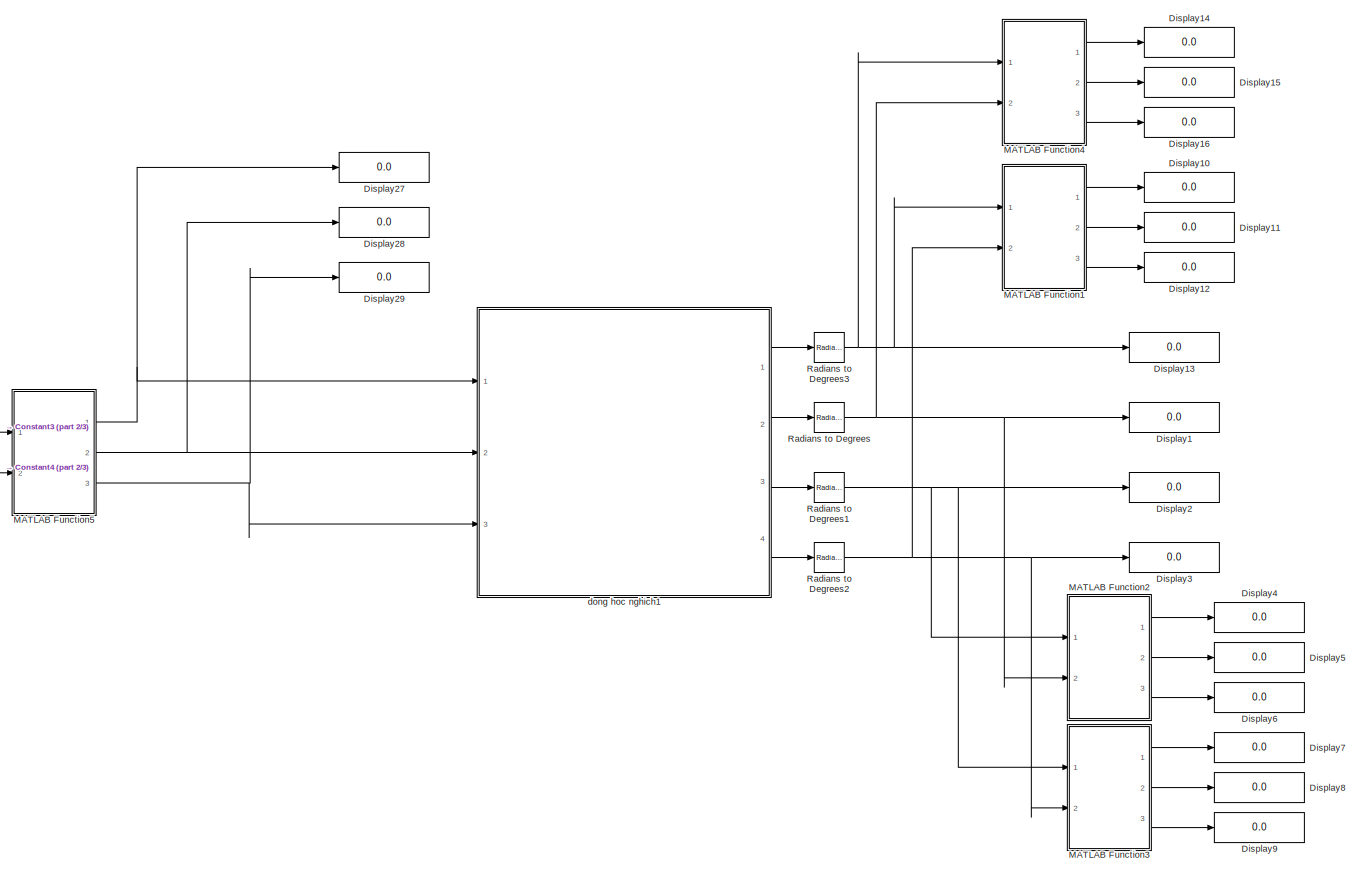
[diagram: root canvas - part 1/3, full width, middle band]
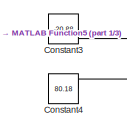
[diagram: root canvas - part 2/3, middle left region]
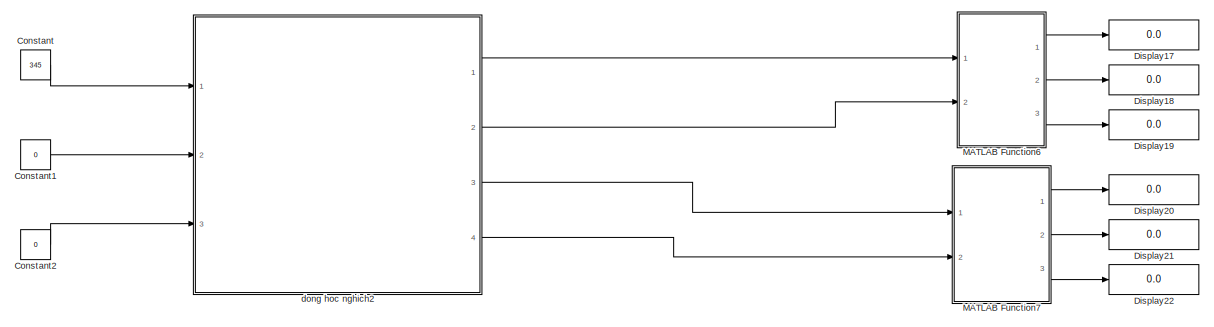
[diagram: root canvas - part 3/3, full width, bottom band]
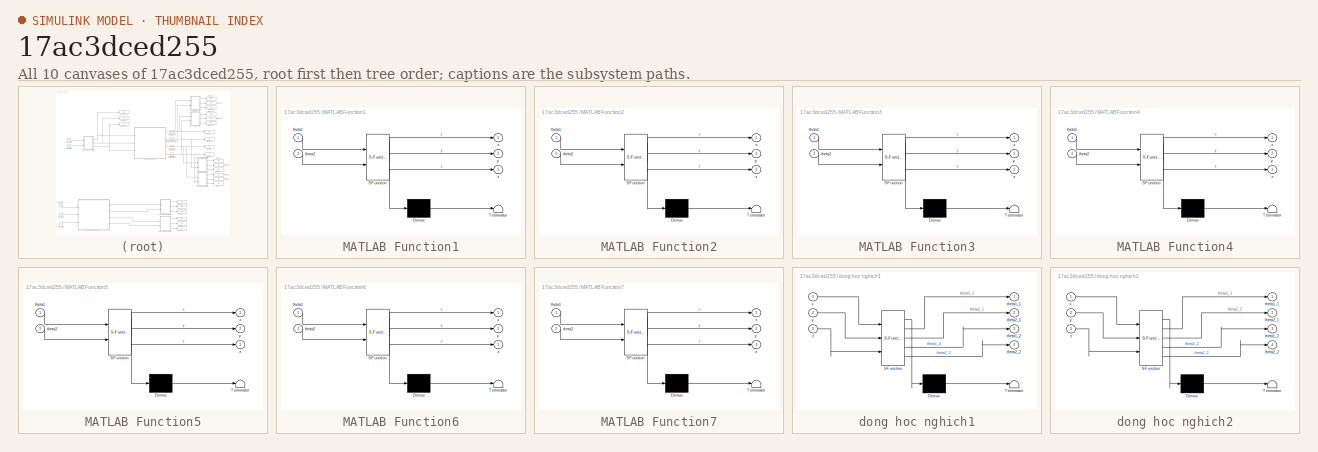
[diagram: thumbnail index - all 10 canvases of the model, root first then tree order]
MODEL slx_17ac3dced255
KIND model
CONFIG AbsTol = auto
CONFIG EnableMultiTasking = off
CONFIG FixedStep = auto
CONFIG MaxStep = auto
CONFIG MinStep = auto
CONFIG RelTol = 1e-3
CONFIG SampleTimeConstraint = Unconstrained
CONFIG SolverName = VariableStepAuto
CONFIG StartTime = 0.0
CONFIG StopTime = 10.0
BLOCK [Constant] Constant
  Value = 345
BLOCK [Constant] Constant1
  Value = 0
BLOCK [Constant] Constant2
  Value = 0
BLOCK [Constant] Constant3
  Value = -20.88
BLOCK [Constant] Constant4
  Value = 80.18
BLOCK [Display] Display1
  Decimation = 1
  Ports = [1]
BLOCK [Display] Display10
  Decimation = 1
  Ports = [1]
BLOCK [Display] Display11
  Decimation = 1
  Ports = [1]
BLOCK [Display] Display12
  Decimation = 1
  Ports = [1]
BLOCK [Display] Display13
  Decimation = 1
  Ports = [1]
BLOCK [Display] Display14
  Decimation = 1
  Ports = [1]
BLOCK [Display] Display15
  Decimation = 1
  Ports = [1]
BLOCK [Display] Display16
  Decimation = 1
  Ports = [1]
BLOCK [Display] Display17
  Decimation = 1
  Ports = [1]
BLOCK [Display] Display18
  Decimation = 1
  Ports = [1]
BLOCK [Display] Display19
  Decimation = 1
  Ports = [1]
BLOCK [Display] Display2
  Decimation = 1
  Ports = [1]
BLOCK [Display] Display20
  Decimation = 1
  Ports = [1]
BLOCK [Display] Display21
  Decimation = 1
  Ports = [1]
BLOCK [Display] Display22
  Decimation = 1
  Ports = [1]
BLOCK [Display] Display27
  Decimation = 1
  Ports = [1]
BLOCK [Display] Display28
  Decimation = 1
  Ports = [1]
BLOCK [Display] Display29
  Decimation = 1
  Ports = [1]
BLOCK [Display] Display3
  Decimation = 1
  Ports = [1]
BLOCK [Display] Display4
  Decimation = 1
  Ports = [1]
BLOCK [Display] Display5
  Decimation = 1
  Ports = [1]
BLOCK [Display] Display6
  Decimation = 1
  Ports = [1]
BLOCK [Display] Display7
  Decimation = 1
  Ports = [1]
BLOCK [Display] Display8
  Decimation = 1
  Ports = [1]
BLOCK [Display] Display9
  Decimation = 1
  Ports = [1]
BLOCK [SubSystem] MATLAB Function1
  ErrorFcn = Stateflow.Translate.translate
  PermitHierarchicalResolution = ExplicitOnly
  Ports = [2, 3]
  RequestExecContextInheritance = off
  SFBlockType = MATLAB Function
  TreatAsAtomicUnit = on
BLOCK [Demux] MATLAB Function1/ Demux 
  Outputs = 1
  Ports = [1, 1]
BLOCK [S-Function] MATLAB Function1/ SFunction 
  EnableBusSupport = on
  FunctionName = sf_sfun
  PortCounts = [2 4]
  Ports = [2, 4]
  SFcnIsStateOwnerBlock = off
  SFunctionDeploymentMode = off
  Tag = Stateflow S-Function 1
BLOCK [Terminator] MATLAB Function1/ Terminator 
BLOCK [Inport] MATLAB Function1/theta1
BLOCK [Inport] MATLAB Function1/theta2
  Port = 2
BLOCK [Outport] MATLAB Function1/x
BLOCK [Outport] MATLAB Function1/y
  Port = 2
BLOCK [Outport] MATLAB Function1/z
  Port = 3
BLOCK [SubSystem] MATLAB Function2
  ErrorFcn = Stateflow.Translate.translate
  PermitHierarchicalResolution = ExplicitOnly
  Ports = [2, 3]
  RequestExecContextInheritance = off
  SFBlockType = MATLAB Function
  TreatAsAtomicUnit = on
BLOCK [Demux] MATLAB Function2/ Demux 
  Outputs = 1
  Ports = [1, 1]
BLOCK [S-Function] MATLAB Function2/ SFunction 
  EnableBusSupport = on
  FunctionName = sf_sfun
  PortCounts = [2 4]
  Ports = [2, 4]
  SFcnIsStateOwnerBlock = off
  SFunctionDeploymentMode = off
  Tag = Stateflow S-Function 2
BLOCK [Terminator] MATLAB Function2/ Terminator 
BLOCK [Inport] MATLAB Function2/theta1
BLOCK [Inport] MATLAB Function2/theta2
  Port = 2
BLOCK [Outport] MATLAB Function2/x
BLOCK [Outport] MATLAB Function2/y
  Port = 2
BLOCK [Outport] MATLAB Function2/z
  Port = 3
BLOCK [SubSystem] MATLAB Function3
  ErrorFcn = Stateflow.Translate.translate
  PermitHierarchicalResolution = ExplicitOnly
  Ports = [2, 3]
  RequestExecContextInheritance = off
  SFBlockType = MATLAB Function
  TreatAsAtomicUnit = on
BLOCK [Demux] MATLAB Function3/ Demux 
  Outputs = 1
  Ports = [1, 1]
BLOCK [S-Function] MATLAB Function3/ SFunction 
  EnableBusSupport = on
  FunctionName = sf_sfun
  PortCounts = [2 4]
  Ports = [2, 4]
  SFcnIsStateOwnerBlock = off
  SFunctionDeploymentMode = off
  Tag = Stateflow S-Function 3
BLOCK [Terminator] MATLAB Function3/ Terminator 
BLOCK [Inport] MATLAB Function3/theta1
BLOCK [Inport] MATLAB Function3/theta2
  Port = 2
BLOCK [Outport] MATLAB Function3/x
BLOCK [Outport] MATLAB Function3/y
  Port = 2
BLOCK [Outport] MATLAB Function3/z
  Port = 3
BLOCK [SubSystem] MATLAB Function4
  ErrorFcn = Stateflow.Translate.translate
  PermitHierarchicalResolution = ExplicitOnly
  Ports = [2, 3]
  RequestExecContextInheritance = off
  SFBlockType = MATLAB Function
  TreatAsAtomicUnit = on
BLOCK [Demux] MATLAB Function4/ Demux 
  Outputs = 1
  Ports = [1, 1]
BLOCK [S-Function] MATLAB Function4/ SFunction 
  EnableBusSupport = on
  FunctionName = sf_sfun
  PortCounts = [2 4]
  Ports = [2, 4]
  SFcnIsStateOwnerBlock = off
  SFunctionDeploymentMode = off
  Tag = Stateflow S-Function 4
BLOCK [Terminator] MATLAB Function4/ Terminator 
BLOCK [Inport] MATLAB Function4/theta1
BLOCK [Inport] MATLAB Function4/theta2
  Port = 2
BLOCK [Outport] MATLAB Function4/x
BLOCK [Outport] MATLAB Function4/y
  Port = 2
BLOCK [Outport] MATLAB Function4/z
  Port = 3
BLOCK [SubSystem] MATLAB Function5
  ErrorFcn = Stateflow.Translate.translate
  PermitHierarchicalResolution = ExplicitOnly
  Ports = [2, 3]
  RequestExecContextInheritance = off
  SFBlockType = MATLAB Function
  TreatAsAtomicUnit = on
BLOCK [Demux] MATLAB Function5/ Demux 
  Outputs = 1
  Ports = [1, 1]
BLOCK [S-Function] MATLAB Function5/ SFunction 
  EnableBusSupport = on
  FunctionName = sf_sfun
  PortCounts = [2 4]
  Ports = [2, 4]
  SFcnIsStateOwnerBlock = off
  SFunctionDeploymentMode = off
  Tag = Stateflow S-Function 7
BLOCK [Terminator] MATLAB Function5/ Terminator 
BLOCK [Inport] MATLAB Function5/theta1
BLOCK [Inport] MATLAB Function5/theta2
  Port = 2
BLOCK [Outport] MATLAB Function5/x
BLOCK [Outport] MATLAB Function5/y
  Port = 2
BLOCK [Outport] MATLAB Function5/z
  Port = 3
BLOCK [SubSystem] MATLAB Function6
  ErrorFcn = Stateflow.Translate.translate
  PermitHierarchicalResolution = ExplicitOnly
  Ports = [2, 3]
  RequestExecContextInheritance = off
  SFBlockType = MATLAB Function
  TreatAsAtomicUnit = on
BLOCK [Demux] MATLAB Function6/ Demux 
  Outputs = 1
  Ports = [1, 1]
BLOCK [S-Function] MATLAB Function6/ SFunction 
  EnableBusSupport = on
  FunctionName = sf_sfun
  PortCounts = [2 4]
  Ports = [2, 4]
  SFcnIsStateOwnerBlock = off
  SFunctionDeploymentMode = off
  Tag = Stateflow S-Function 8
BLOCK [Terminator] MATLAB Function6/ Terminator 
BLOCK [Inport] MATLAB Function6/theta1
BLOCK [Inport] MATLAB Function6/theta2
  Port = 2
BLOCK [Outport] MATLAB Function6/x
BLOCK [Outport] MATLAB Function6/y
  Port = 2
BLOCK [Outport] MATLAB Function6/z
  Port = 3
BLOCK [SubSystem] MATLAB Function7
  ErrorFcn = Stateflow.Translate.translate
  PermitHierarchicalResolution = ExplicitOnly
  Ports = [2, 3]
  RequestExecContextInheritance = off
  SFBlockType = MATLAB Function
  TreatAsAtomicUnit = on
BLOCK [Demux] MATLAB Function7/ Demux 
  Outputs = 1
  Ports = [1, 1]
BLOCK [S-Function] MATLAB Function7/ SFunction 
  EnableBusSupport = on
  FunctionName = sf_sfun
  PortCounts = [2 4]
  Ports = [2, 4]
  SFcnIsStateOwnerBlock = off
  SFunctionDeploymentMode = off
  Tag = Stateflow S-Function 9
BLOCK [Terminator] MATLAB Function7/ Terminator 
BLOCK [Inport] MATLAB Function7/theta1
BLOCK [Inport] MATLAB Function7/theta2
  Port = 2
BLOCK [Outport] MATLAB Function7/x
BLOCK [Outport] MATLAB Function7/y
  Port = 2
BLOCK [Outport] MATLAB Function7/z
  Port = 3
BLOCK [Reference] Radians to Degrees  REF=simulink_extras/Transformations/Radians
to Degrees
  Ports = [1, 1]
  SourceBlock = simulink_extras/Transformations/Radians\nto Degrees
  SourceProductBaseCode = SL
  SourceType = RadiansToDegrees
BLOCK [Reference] Radians to Degrees1  REF=simulink_extras/Transformations/Radians
to Degrees
  Ports = [1, 1]
  SourceBlock = simulink_extras/Transformations/Radians\nto Degrees
  SourceProductBaseCode = SL
  SourceType = RadiansToDegrees
BLOCK [Reference] Radians to Degrees2  REF=simulink_extras/Transformations/Radians
to Degrees
  Ports = [1, 1]
  SourceBlock = simulink_extras/Transformations/Radians\nto Degrees
  SourceProductBaseCode = SL
  SourceType = RadiansToDegrees
BLOCK [Reference] Radians to Degrees3  REF=simulink_extras/Transformations/Radians
to Degrees
  Ports = [1, 1]
  SourceBlock = simulink_extras/Transformations/Radians\nto Degrees
  SourceProductBaseCode = SL
  SourceType = RadiansToDegrees
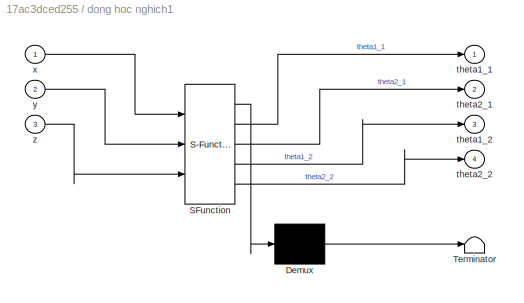
BLOCK [SubSystem] dong hoc nghich1
  ErrorFcn = Stateflow.Translate.translate
  PermitHierarchicalResolution = ExplicitOnly
  Ports = [3, 4]
  RequestExecContextInheritance = off
  SFBlockType = MATLAB Function
  TreatAsAtomicUnit = on
BLOCK [Demux] dong hoc nghich1/ Demux 
  Outputs = 1
  Ports = [1, 1]
BLOCK [S-Function] dong hoc nghich1/ SFunction 
  EnableBusSupport = on
  FunctionName = sf_sfun
  PortCounts = [3 5]
  Ports = [3, 5]
  SFcnIsStateOwnerBlock = off
  SFunctionDeploymentMode = off
  Tag = Stateflow S-Function 6
BLOCK [Terminator] dong hoc nghich1/ Terminator 
BLOCK [Outport] dong hoc nghich1/theta1_1
BLOCK [Outport] dong hoc nghich1/theta1_2
  Port = 3
BLOCK [Outport] dong hoc nghich1/theta2_1
  Port = 2
BLOCK [Outport] dong hoc nghich1/theta2_2
  Port = 4
BLOCK [Inport] dong hoc nghich1/x
BLOCK [Inport] dong hoc nghich1/y
  Port = 2
BLOCK [Inport] dong hoc nghich1/z
  Port = 3
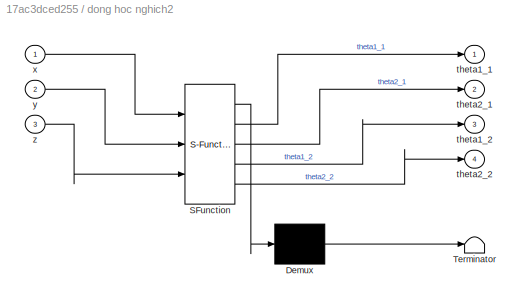
BLOCK [SubSystem] dong hoc nghich2
  ErrorFcn = Stateflow.Translate.translate
  PermitHierarchicalResolution = ExplicitOnly
  Ports = [3, 4]
  RequestExecContextInheritance = off
  SFBlockType = MATLAB Function
  TreatAsAtomicUnit = on
BLOCK [Demux] dong hoc nghich2/ Demux 
  Outputs = 1
  Ports = [1, 1]
BLOCK [S-Function] dong hoc nghich2/ SFunction 
  EnableBusSupport = on
  FunctionName = sf_sfun
  PortCounts = [3 5]
  Ports = [3, 5]
  SFcnIsStateOwnerBlock = off
  SFunctionDeploymentMode = off
  Tag = Stateflow S-Function 5
BLOCK [Terminator] dong hoc nghich2/ Terminator 
BLOCK [Outport] dong hoc nghich2/theta1_1
BLOCK [Outport] dong hoc nghich2/theta1_2
  Port = 3
BLOCK [Outport] dong hoc nghich2/theta2_1
  Port = 2
BLOCK [Outport] dong hoc nghich2/theta2_2
  Port = 4
BLOCK [Inport] dong hoc nghich2/x
BLOCK [Inport] dong hoc nghich2/y
  Port = 2
BLOCK [Inport] dong hoc nghich2/z
  Port = 3
LINE Constant1:1 -> dong hoc nghich2:2
LINE Constant2:1 -> dong hoc nghich2:3
LINE Constant3:1 -> MATLAB Function5:1
LINE Constant4:1 -> MATLAB Function5:2
LINE Constant:1 -> dong hoc nghich2:1
LINE MATLAB Function1:1 -> Display10:1
LINE MATLAB Function1:2 -> Display11:1
LINE MATLAB Function1:3 -> Display12:1
LINE MATLAB Function2:1 -> Display4:1
LINE MATLAB Function2:2 -> Display5:1
LINE MATLAB Function2:3 -> Display6:1
LINE MATLAB Function3:1 -> Display7:1
LINE MATLAB Function3:2 -> Display8:1
LINE MATLAB Function3:3 -> Display9:1
LINE MATLAB Function4:1 -> Display14:1
LINE MATLAB Function4:2 -> Display15:1
LINE MATLAB Function4:3 -> Display16:1
NET MATLAB Function5:1 -> Display27:1, dong hoc nghich1:1
NET MATLAB Function5:2 -> Display28:1, dong hoc nghich1:2
NET MATLAB Function5:3 -> Display29:1, dong hoc nghich1:3
LINE MATLAB Function6:1 -> Display17:1
LINE MATLAB Function6:2 -> Display18:1
LINE MATLAB Function6:3 -> Display19:1
LINE MATLAB Function7:1 -> Display20:1
LINE MATLAB Function7:2 -> Display21:1
LINE MATLAB Function7:3 -> Display22:1
NET Radians to Degrees1:1 -> Display2:1, MATLAB Function2:1, MATLAB Function3:1
NET Radians to Degrees2:1 -> Display3:1, MATLAB Function1:2, MATLAB Function3:2
NET Radians to Degrees3:1 -> Display13:1, MATLAB Function1:1, MATLAB Function4:1
NET Radians to Degrees:1 -> Display1:1, MATLAB Function2:2, MATLAB Function4:2
LINE dong hoc nghich1:1 -> Radians to Degrees3:1
LINE dong hoc nghich1:2 -> Radians to Degrees:1
LINE dong hoc nghich1:3 -> Radians to Degrees1:1
LINE dong hoc nghich1:4 -> Radians to Degrees2:1
LINE dong hoc nghich2:1 -> MATLAB Function6:1
LINE dong hoc nghich2:2 -> MATLAB Function6:2
LINE dong hoc nghich2:3 -> MATLAB Function7:1
LINE dong hoc nghich2:4 -> MATLAB Function7:2
note: NET lines group one-source signal fan-out (src -> all destinations, sorted); 1:1 wires keep LINE
CHART MATLAB Function6 states=1 transitions=1
  STATE_LABEL 'eML_blk_kernel()'
  STATE_LABEL 'SCRIPT:\nfunction [x,y,z] = forward(theta1,theta2)\n%% Khai bao bien\nl1=1;\nl2=1;\nl3=1;\nd=1;\nx=l1 + l2*cosd(theta1) + l3* ((cosd(theta1)*cosd(theta2))-sind(theta1)*sind(theta2));\n%y= cosd(q1)*l3*sind(q2) + sind(q1)*(l2+l3*cosd(q2));\ny=l2*sind(theta1) + l3*sind(theta1+theta2);\nz=d;\n%%diem dau cuoi\n    \n'  <repeated x6 — deduplicated; at blocks: MATLAB Function6, MATLAB Function7, MATLAB Function1, MATLAB Function2, MATLAB Function3, MATLAB Function4>
CHART MATLAB Function7 states=1 transitions=1
  STATE_LABEL 'eML_blk_kernel()'
CHART MATLAB Function1 states=1 transitions=1
  STATE_LABEL 'eML_blk_kernel()'
CHART MATLAB Function2 states=1 transitions=1
  STATE_LABEL 'eML_blk_kernel()'
CHART MATLAB Function3 states=1 transitions=1
  STATE_LABEL 'eML_blk_kernel()'
CHART MATLAB Function4 states=1 transitions=1
  STATE_LABEL 'eML_blk_kernel()'
CHART dong hoc nghich2 states=1 transitions=1
  STATE_LABEL 'eML_blk_kernel()'
  STATE_LABEL 'SCRIPT:\n%%function [theta1, theta2] = Inverse(x,y,z)\n    %%L1=1; \n   %% L2=1; \n    %%L3=1;\n        %% theta2:\n    %%c2=((x-L1)^2+y^2-L3^2-L1^2)/(2*L2*L3);\n    % Bo nghiem 1\n    %%for i=1:2\n   %%     if i==1\n     %%     s2=sqrt(1-c2^2);\n    %%    else\n   %%       s2=-sqrt(1-c2^2);\n   %% end\n    %%theta2=atan2(s2,c2);\n   %% c1=((x-L1)*(L3*cos(theta2)+L2)+y*L3*sin(theta2))/((L3*cos(theta2)+L2)*(L3*co...<+1552ch>'
CHART dong hoc nghich1 states=1 transitions=1
  STATE_LABEL 'eML_blk_kernel()'
  STATE_LABEL 'SCRIPT:\n%%function [theta1, theta2] = Inverse(x,y,z)\n    %%L1=1; \n   %% L2=1; \n    %%L3=1;\n        %% theta2:\n    %%c2=((x-L1)^2+y^2-L3^2-L1^2)/(2*L2*L3);\n    % Bo nghiem 1\n    %%for i=1:2\n   %%     if i==1\n     %%     s2=sqrt(1-c2^2);\n    %%    else\n   %%       s2=-sqrt(1-c2^2);\n   %% end\n    %%theta2=atan2(s2,c2);\n   %% c1=((x-L1)*(L3*cos(theta2)+L2)+y*L3*sin(theta2))/((L3*cos(theta2)+L2)*(L3*co...<+1551ch>'
CHART MATLAB Function5 states=1 transitions=1
  STATE_LABEL 'eML_blk_kernel()'
  STATE_LABEL 'SCRIPT:\nfunction [x,y,z] = forward(theta1,theta2)\n%% Khai bao bien\nl1=65;\nl2=170;\nl3=110;\nd=10;\n%x=l1 + l2*cosd(theta1) + l3* ((cosd(theta1)*cosd(theta2))-sind(theta1)*sind(theta2));\nx=l1 + l2*cosd(theta1) + l3* (cosd(theta1+theta2));\n%y= cosd(q1)*l3*sind(q2) + sind(q1)*(l2+l3*cosd(q2));\ny=l2*sind(theta1) + l3*sind(theta1+theta2);\nz=d;\n%%diem dau cuoi\n    \n'
CHART  states=0 transitions=0
CHART  states=0 transitions=0
CHART  states=0 transitions=0
CHART  states=0 transitions=0
CHART  states=0 transitions=0
CHART  states=0 transitions=0
CHART  states=0 transitions=0
CHART  states=0 transitions=0
CHART  states=0 transitions=0
